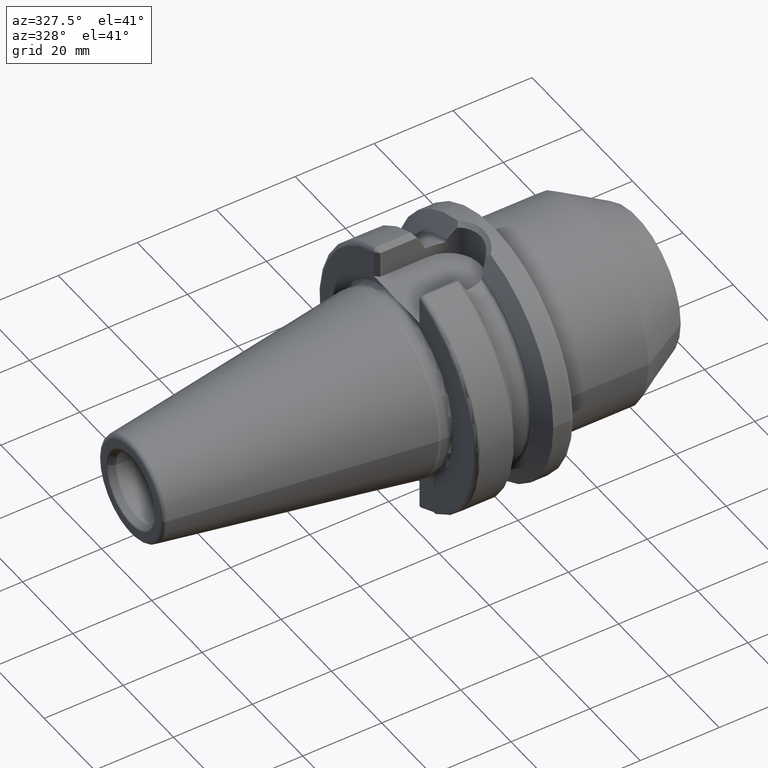
[diagram: clean part render]
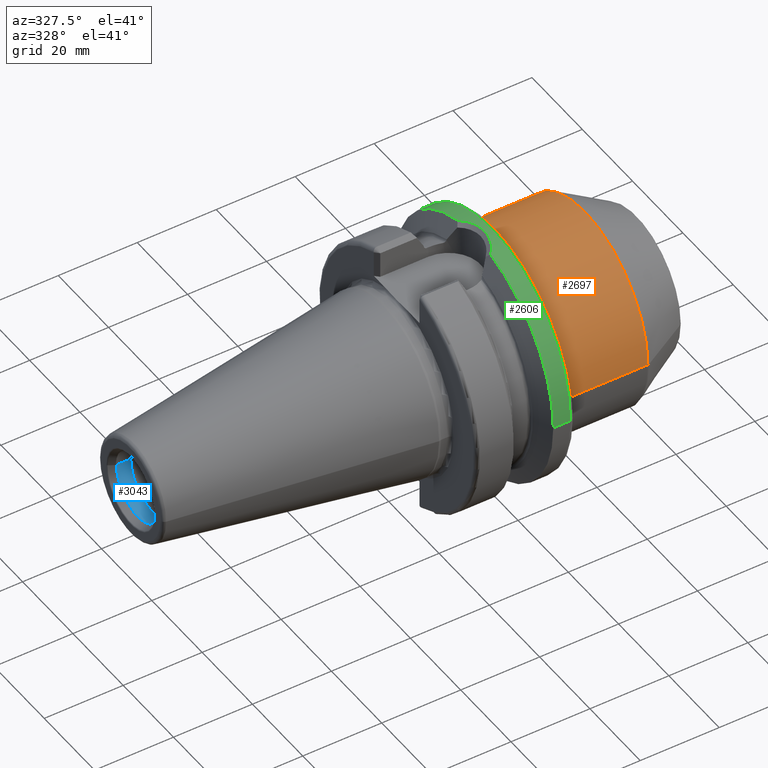
[diagram: same view with three faces highlighted in distinct colors, each labeled with its STEP entity id]
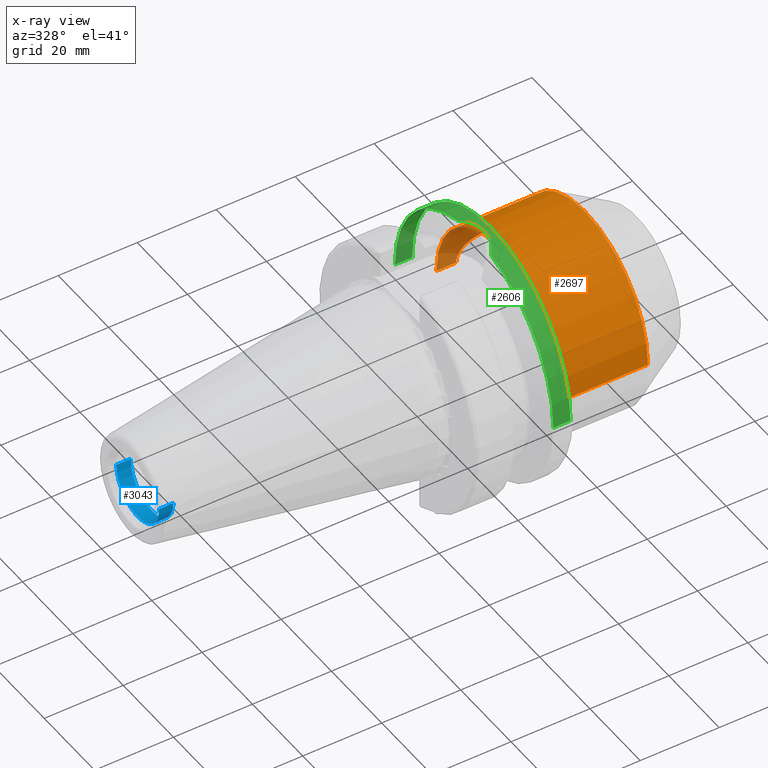
[diagram: x-ray of the same camera — body ghosted, the three highlighted faces saturated]
A machine part, auxiliary view with three faces highlighted in distinct colors.
The next image is the same camera in x-ray (body ghosted, the three faces saturated) — at least one of them is partly hidden behind the body in this view.
Their STEP definitions:

[orange] entity #2697 — the highlighted cylindrical surface (partial cylindrical patch) has radius 25 mm, axis along (1, 0, 0).
#856=CARTESIAN_POINT('',(4.973205080757E1,0.E0,0.E0));
#857=DIRECTION('',(-1.E0,0.E0,0.E0));
#858=DIRECTION('',(0.E0,-1.E0,0.E0));
#859=AXIS2_PLACEMENT_3D('',#856,#857,#858);
#861=CARTESIAN_POINT('',(2.8E1,0.E0,0.E0));
#862=DIRECTION('',(1.E0,0.E0,0.E0));
#863=DIRECTION('',(0.E0,1.E0,0.E0));
#864=AXIS2_PLACEMENT_3D('',#861,#862,#863);
#866=CARTESIAN_POINT('',(4.5E1,2.5E1,0.E0));
#867=CARTESIAN_POINT('',(4.5E1,2.5E1,3.672874650313E-1));
#868=CARTESIAN_POINT('',(4.493414040273E1,2.498405812942E1,1.091742844236E0));
#869=CARTESIAN_POINT('',(4.463133580741E1,2.491312392091E1,2.168720513454E0));
#870=CARTESIAN_POINT('',(4.413725133417E1,2.480487484852E1,3.166255662294E0));
#871=CARTESIAN_POINT('',(4.345987826359E1,2.467202394224E1,4.065382601521E0));
#872=CARTESIAN_POINT('',(4.263416990940E1,2.453453298981E1,4.818000695332E0));
#873=CARTESIAN_POINT('',(4.167391230033E1,2.440943952913E1,5.409627005314E0));
#874=CARTESIAN_POINT('',(4.064304910712E1,2.431706864074E1,5.805969193440E0));
#875=CARTESIAN_POINT('',(3.954758800754E1,2.426719502009E1,6.008717631163E0));
#876=CARTESIAN_POINT('',(3.845328455293E1,2.426717151131E1,6.008814355188E0));
#877=CARTESIAN_POINT('',(3.735763358109E1,2.431702540207E1,5.806141232417E0));
#878=CARTESIAN_POINT('',(3.632705357250E1,2.440932944658E1,5.410133553846E0));
#879=CARTESIAN_POINT('',(3.536615727194E1,2.453448525854E1,4.818214761955E0));
#880=CARTESIAN_POINT('',(3.454114892432E1,2.467183896890E1,4.066508487195E0));
#881=CARTESIAN_POINT('',(3.386291600319E1,2.480483501159E1,3.166589403653E0));
#882=CARTESIAN_POINT('',(3.336896737339E1,2.491305649485E1,2.169501322851E0));
#883=CARTESIAN_POINT('',(3.306581698984E1,2.498406699621E1,1.091759734049E0));
#884=CARTESIAN_POINT('',(3.3E1,2.5E1,3.672833447675E-1));
#885=CARTESIAN_POINT('',(3.3E1,2.5E1,0.E0));
#902=DIRECTION('',(-1.E0,0.E0,3.506347329903E-13));
#903=VECTOR('',#902,4.732050807569E0);
#904=CARTESIAN_POINT('',(4.973205080757E1,2.5E1,-1.657690562909E-12));
#905=LINE('',#904,#903);
#927=DIRECTION('',(-1.E0,0.E0,2.521677311407E-13));
#928=VECTOR('',#927,5.E0);
#929=CARTESIAN_POINT('',(3.3E1,2.5E1,0.E0));
#930=LINE('',#929,#928);
#936=DIRECTION('',(-1.E0,0.E0,-1.348704687567E-13));
#937=VECTOR('',#936,2.173205080757E1);
#938=CARTESIAN_POINT('',(4.973205080757E1,-2.5E1,1.656920497536E-12));
#939=LINE('',#938,#937);
#1523=VERTEX_POINT('',#866);
#1524=VERTEX_POINT('',#885);
#1531=CARTESIAN_POINT('',(2.8E1,-2.5E1,0.E0));
#1532=CARTESIAN_POINT('',(2.8E1,2.5E1,0.E0));
#1533=VERTEX_POINT('',#1531);
#1534=VERTEX_POINT('',#1532);
#1535=CARTESIAN_POINT('',(4.973205080757E1,2.5E1,0.E0));
#1536=CARTESIAN_POINT('',(4.973205080757E1,-2.5E1,0.E0));
#1537=VERTEX_POINT('',#1535);
#1538=VERTEX_POINT('',#1536);
#2679=CARTESIAN_POINT('',(2.52E1,0.E0,0.E0));
#2680=DIRECTION('',(1.E0,0.E0,0.E0));
#2681=DIRECTION('',(0.E0,-1.E0,0.E0));
#2682=AXIS2_PLACEMENT_3D('',#2679,#2680,#2681);
#2683=CYLINDRICAL_SURFACE('',#2682,2.5E1);
#2685=ORIENTED_EDGE('',*,*,#2684,.F.);
#2687=ORIENTED_EDGE('',*,*,#2686,.T.);
#2688=ORIENTED_EDGE('',*,*,#2671,.F.);
#2690=ORIENTED_EDGE('',*,*,#2689,.F.);
#2692=ORIENTED_EDGE('',*,*,#2691,.F.);
#2694=ORIENTED_EDGE('',*,*,#2693,.F.);
#2695=EDGE_LOOP('',(#2685,#2687,#2688,#2690,#2692,#2694));
#2696=FACE_OUTER_BOUND('',#2695,.F.);
#2697=ADVANCED_FACE('',(#2696),#2683,.T.);
#860=CIRCLE('',#859,2.5E1);
#865=CIRCLE('',#864,2.5E1);
#886=B_SPLINE_CURVE_WITH_KNOTS('',3,(#866,#867,#868,#869,#870,#871,#872,#873,
#874,#875,#876,#877,#878,#879,#880,#881,#882,#883,#884,#885),.UNSPECIFIED.,.F.,
.F.,(4,1,1,1,1,1,1,1,1,1,1,1,1,1,1,1,1,4),(0.E0,5.882352941176E-2,
1.176470588235E-1,1.764705882353E-1,2.352941176471E-1,2.941176470588E-1,
3.529411764706E-1,4.117647058824E-1,4.705882352941E-1,5.294117647059E-1,
5.882352941176E-1,6.470588235294E-1,7.058823529412E-1,7.647058823529E-1,
8.235294117647E-1,8.823529411765E-1,9.411764705882E-1,1.E0),.UNSPECIFIED.);
#2671=EDGE_CURVE('',#1534,#1533,#865,.T.);
#2684=EDGE_CURVE('',#1538,#1537,#860,.T.);
#2686=EDGE_CURVE('',#1538,#1533,#939,.T.);
#2689=EDGE_CURVE('',#1524,#1534,#930,.T.);
#2691=EDGE_CURVE('',#1523,#1524,#886,.T.);
#2693=EDGE_CURVE('',#1537,#1523,#905,.T.);

[blue] entity #3043 — the highlighted cylindrical surface (partial cylindrical patch) has radius 8.5045 mm, axis along (1, 0, 0).
#1134=CARTESIAN_POINT('',(-6.356856374409E1,0.E0,0.E0));
#1135=DIRECTION('',(-1.E0,0.E0,0.E0));
#1136=DIRECTION('',(0.E0,1.E0,0.E0));
#1137=AXIS2_PLACEMENT_3D('',#1134,#1135,#1136);
#1144=DIRECTION('',(-1.E0,0.E0,0.E0));
#1145=VECTOR('',#1144,3.618563744093E0);
#1146=CARTESIAN_POINT('',(-5.995E1,8.5045E0,0.E0));
#1147=LINE('',#1146,#1145);
#1148=CARTESIAN_POINT('',(-5.995E1,0.E0,0.E0));
#1149=DIRECTION('',(-1.E0,0.E0,0.E0));
#1150=DIRECTION('',(0.E0,1.E0,0.E0));
#1151=AXIS2_PLACEMENT_3D('',#1148,#1149,#1150);
#1153=DIRECTION('',(-1.E0,0.E0,0.E0));
#1154=VECTOR('',#1153,3.618563744093E0);
#1155=CARTESIAN_POINT('',(-5.995E1,-8.5045E0,0.E0));
#1156=LINE('',#1155,#1154);
#1392=CARTESIAN_POINT('',(-5.995E1,8.5045E0,0.E0));
#1393=VERTEX_POINT('',#1392);
#1394=CARTESIAN_POINT('',(-6.356856374409E1,8.5045E0,0.E0));
#1395=VERTEX_POINT('',#1394);
#1414=CARTESIAN_POINT('',(-5.995E1,-8.5045E0,0.E0));
#1415=VERTEX_POINT('',#1414);
#1416=CARTESIAN_POINT('',(-6.356856374409E1,-8.5045E0,0.E0));
#1417=VERTEX_POINT('',#1416);
#3029=CARTESIAN_POINT('',(-6.780789777418E1,0.E0,0.E0));
#3030=DIRECTION('',(1.E0,0.E0,0.E0));
#3031=DIRECTION('',(0.E0,-1.E0,0.E0));
#3032=AXIS2_PLACEMENT_3D('',#3029,#3030,#3031);
#3033=CYLINDRICAL_SURFACE('',#3032,8.5045E0);
#3035=ORIENTED_EDGE('',*,*,#3034,.F.);
#3037=ORIENTED_EDGE('',*,*,#3036,.T.);
#3039=ORIENTED_EDGE('',*,*,#3038,.T.);
#3040=ORIENTED_EDGE('',*,*,#3022,.F.);
#3041=EDGE_LOOP('',(#3035,#3037,#3039,#3040));
#3042=FACE_OUTER_BOUND('',#3041,.F.);
#3043=ADVANCED_FACE('',(#3042),#3033,.F.);
#1138=CIRCLE('',#1137,8.5045E0);
#1152=CIRCLE('',#1151,8.5045E0);
#3022=EDGE_CURVE('',#1395,#1417,#1138,.T.);
#3034=EDGE_CURVE('',#1393,#1395,#1147,.T.);
#3036=EDGE_CURVE('',#1393,#1415,#1152,.T.);
#3038=EDGE_CURVE('',#1415,#1417,#1156,.T.);

[green] entity #2606 — the highlighted cylindrical surface (partial cylindrical patch) has radius 31.4875 mm, axis along (1, 0, 0).
#251=DIRECTION('',(-1.E0,0.E0,0.E0));
#252=VECTOR('',#251,4.372722531031E0);
#253=CARTESIAN_POINT('',(2.6E1,-3.14875E1,0.E0));
#254=LINE('',#253,#252);
#260=DIRECTION('',(-1.E0,0.E0,0.E0));
#261=VECTOR('',#260,4.372722531031E0);
#262=CARTESIAN_POINT('',(2.6E1,3.14875E1,0.E0));
#263=LINE('',#262,#261);
#787=CARTESIAN_POINT('',(2.162727746897E1,0.E0,0.E0));
#788=DIRECTION('',(1.E0,0.E0,0.E0));
#789=DIRECTION('',(0.E0,1.E0,0.E0));
#790=AXIS2_PLACEMENT_3D('',#787,#788,#789);
#792=CARTESIAN_POINT('',(2.6E1,0.E0,0.E0));
#793=DIRECTION('',(1.E0,0.E0,0.E0));
#794=DIRECTION('',(0.E0,1.E0,0.E0));
#795=AXIS2_PLACEMENT_3D('',#792,#793,#794);
#797=CARTESIAN_POINT('',(2.162727746897E1,0.E0,0.E0));
#798=DIRECTION('',(1.E0,0.E0,0.E0));
#799=DIRECTION('',(0.E0,-2.095835969751E-1,9.777907321503E-1));
#800=AXIS2_PLACEMENT_3D('',#797,#798,#799);
#802=CARTESIAN_POINT('',(2.162727746897E1,6.599266458023E0,3.078818504664E1));
#803=CARTESIAN_POINT('',(2.174833158986E1,6.472647497729E0,3.081532819542E1));
#804=CARTESIAN_POINT('',(2.224001076017E1,5.928319507915E0,3.092859425663E1));
#805=CARTESIAN_POINT('',(2.299264157127E1,4.865473008614E0,3.112101417878E1));
#806=CARTESIAN_POINT('',(2.370802134558E1,3.339564315076E0,3.132339202075E1));
#807=CARTESIAN_POINT('',(2.414652710220E1,1.714273004807E0,3.145540376701E1));
#808=CARTESIAN_POINT('',(2.429811527425E1,4.049253056535E-2,3.150243235345E1));
#809=CARTESIAN_POINT('',(2.416050694460E1,-1.633810434905E0,3.145971127167E1));
#810=CARTESIAN_POINT('',(2.373587321483E1,-3.262379309688E0,3.133159837426E1));
#811=CARTESIAN_POINT('',(2.303364301386E1,-4.794262913871E0,3.113217292109E1));
#812=CARTESIAN_POINT('',(2.227463190406E1,-5.886161097383E0,3.093695745132E1));
#813=CARTESIAN_POINT('',(2.176704574572E1,-6.453064676853E0,3.081952626248E1));
#814=CARTESIAN_POINT('',(2.162727746897E1,-6.599263509754E0,3.078818567858E1));
#1348=CARTESIAN_POINT('',(2.162727746897E1,3.14875E1,0.E0));
#1349=CARTESIAN_POINT('',(2.162727746897E1,6.599266458023E0,3.078818504664E1));
#1350=VERTEX_POINT('',#1348);
#1351=VERTEX_POINT('',#1349);
#1352=CARTESIAN_POINT('',(2.162727746897E1,-3.14875E1,0.E0));
#1354=VERTEX_POINT('',#1352);
#1356=CARTESIAN_POINT('',(2.6E1,3.14875E1,0.E0));
#1357=VERTEX_POINT('',#1356);
#1358=CARTESIAN_POINT('',(2.6E1,-3.14875E1,0.E0));
#1359=VERTEX_POINT('',#1358);
#1360=CARTESIAN_POINT('',(2.162727746897E1,-6.599263509754E0,3.078818567858E1));
#1361=VERTEX_POINT('',#1360);
#2591=CARTESIAN_POINT('',(-7.002E1,0.E0,0.E0));
#2592=DIRECTION('',(1.E0,0.E0,0.E0));
#2593=DIRECTION('',(0.E0,-1.E0,0.E0));
#2594=AXIS2_PLACEMENT_3D('',#2591,#2592,#2593);
#2595=CYLINDRICAL_SURFACE('',#2594,3.14875E1);
#2596=ORIENTED_EDGE('',*,*,#2505,.F.);
#2597=ORIENTED_EDGE('',*,*,#1891,.F.);
#2599=ORIENTED_EDGE('',*,*,#2598,.T.);
#2600=ORIENTED_EDGE('',*,*,#1887,.T.);
#2601=ORIENTED_EDGE('',*,*,#2518,.F.);
#2603=ORIENTED_EDGE('',*,*,#2602,.F.);
#2604=EDGE_LOOP('',(#2596,#2597,#2599,#2600,#2601,#2603));
#2605=FACE_OUTER_BOUND('',#2604,.F.);
#2606=ADVANCED_FACE('',(#2605),#2595,.T.);
#791=CIRCLE('',#790,3.14875E1);
#796=CIRCLE('',#795,3.14875E1);
#801=CIRCLE('',#800,3.14875E1);
#815=B_SPLINE_CURVE_WITH_KNOTS('',3,(#802,#803,#804,#805,#806,#807,#808,#809,
#810,#811,#812,#813,#814),.UNSPECIFIED.,.F.,.F.,(4,1,1,1,1,1,1,1,1,1,4),(0.E0,
3.624421393369E-2,1.514830587561E-1,2.667219035786E-1,3.819607484011E-1,
4.971995932235E-1,6.124384380460E-1,7.276772828685E-1,8.429161276909E-1,
9.581549725134E-1,1.E0),.UNSPECIFIED.);
#1887=EDGE_CURVE('',#1359,#1354,#254,.T.);
#1891=EDGE_CURVE('',#1357,#1350,#263,.T.);
#2505=EDGE_CURVE('',#1350,#1351,#791,.T.);
#2518=EDGE_CURVE('',#1361,#1354,#801,.T.);
#2598=EDGE_CURVE('',#1357,#1359,#796,.T.);
#2602=EDGE_CURVE('',#1351,#1361,#815,.T.);